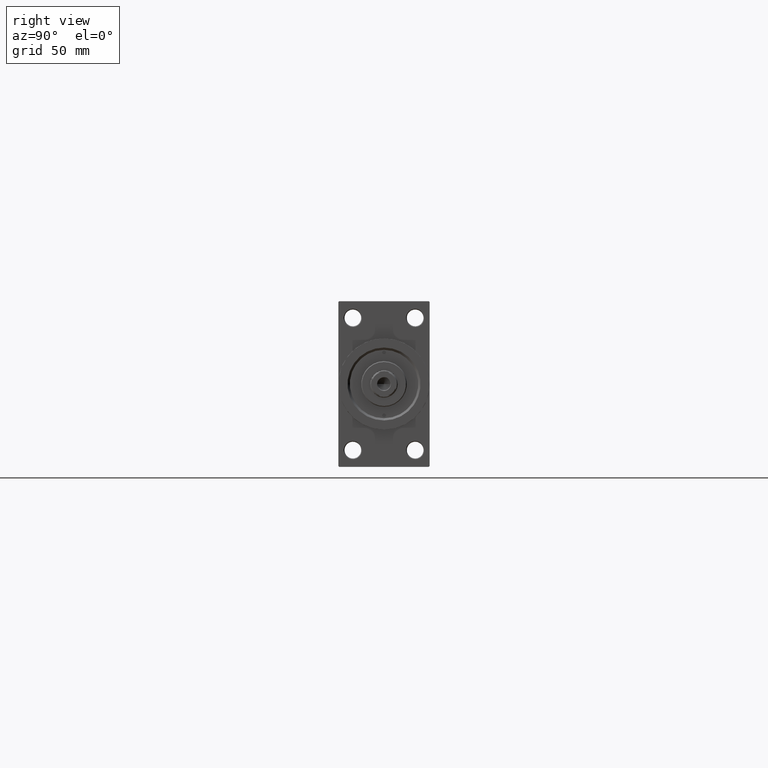
[diagram: clean part render]
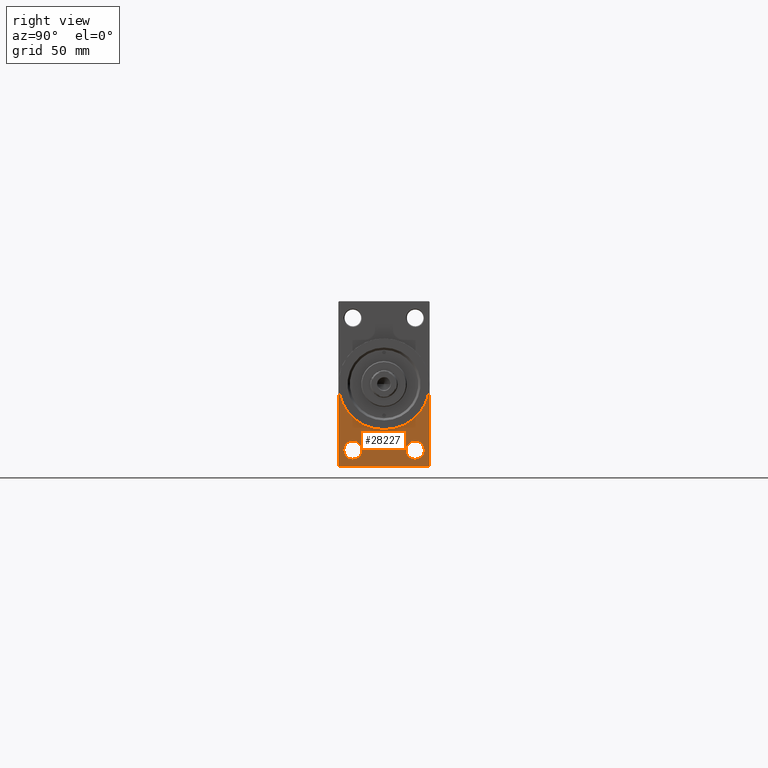
[diagram: same view with one face highlighted and labeled with its STEP entity id]
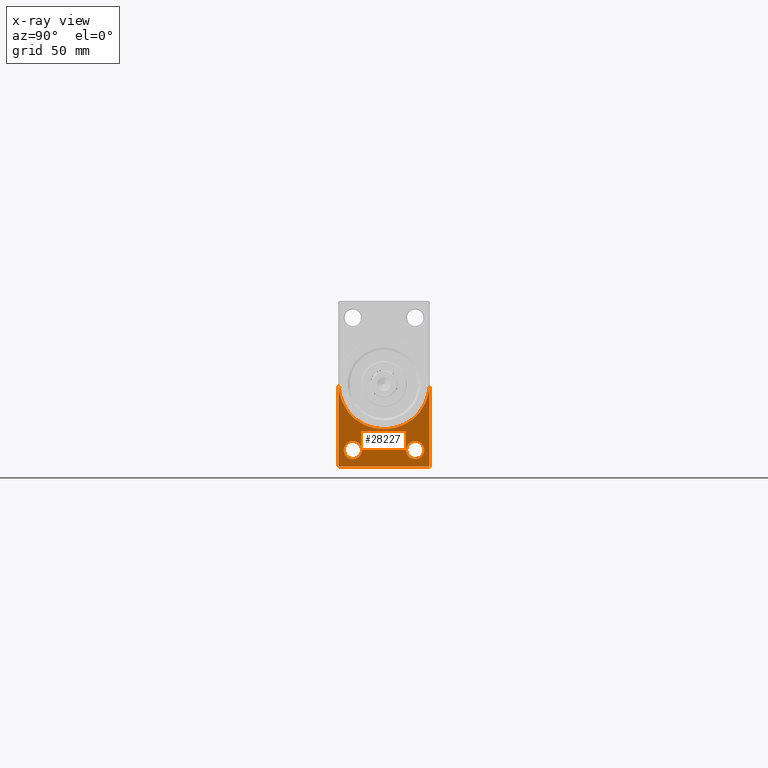
[diagram: x-ray of the same camera — body ghosted, the highlighted face saturated]
A machine part, right view. The second image highlights one B-rep face of the part: STEP entity #28227.
The next image is the same camera in x-ray: the body ghosted, the highlighted face saturated — about 0% of this face is hidden behind the body in this view.
In plain terms, the highlighted planar face has unit normal (-1, 0, 0).
Its self-contained STEP definition (entity closure, byte-faithful):
#1434 = CIRCLE ( 'NONE', #29779, 30.00000000000000000 ) ;
#1497 = VERTEX_POINT ( 'NONE', #36534 ) ;
#1660 = LINE ( 'NONE', #27813, #47189 ) ;
#1730 = CARTESIAN_POINT ( 'NONE',  ( 418.0000000000000000, -20.50000000000000000, -49.49999999999995026 ) ) ;
#1760 = PLANE ( 'NONE',  #44099 ) ;
#1898 = DIRECTION ( 'NONE',  ( 0.000000000000000000, 0.7071067811865352493, -0.7071067811865597852 ) ) ;
#1968 = VERTEX_POINT ( 'NONE', #27985 ) ;
#2643 = LINE ( 'NONE', #21101, #42550 ) ;
#3330 = VERTEX_POINT ( 'NONE', #1730 ) ;
#3843 = CARTESIAN_POINT ( 'NONE',  ( 418.0000000000000000, -29.49999999999994671, -54.50000000000000000 ) ) ;
#4237 = AXIS2_PLACEMENT_3D ( 'NONE', #38419, #27400, #31465 ) ;
#4543 = ORIENTED_EDGE ( 'NONE', *, *, #18996, .T. ) ;
#4949 = EDGE_CURVE ( 'NONE', #1497, #1968, #37980, .T. ) ;
#6084 = DIRECTION ( 'NONE',  ( 0.000000000000000000, 0.000000000000000000, 1.000000000000000000 ) ) ;
#6450 = EDGE_CURVE ( 'NONE', #21671, #11611, #2643, .T. ) ;
#6783 = ORIENTED_EDGE ( 'NONE', *, *, #6450, .F. ) ;
#6958 = ORIENTED_EDGE ( 'NONE', *, *, #36965, .T. ) ;
#7778 = DIRECTION ( 'NONE',  ( 0.000000000000000000, -1.000000000000000000, -1.156482317317871478E-16 ) ) ;
#8243 = CARTESIAN_POINT ( 'NONE',  ( 418.0000000000000000, -20.50000000000000000, -43.50000000000000000 ) ) ;
#8944 = DIRECTION ( 'NONE',  ( -1.000000000000000000, 0.000000000000000000, -0.000000000000000000 ) ) ;
#9300 = EDGE_LOOP ( 'NONE', ( #12658, #30527 ) ) ;
#9624 = CARTESIAN_POINT ( 'NONE',  ( 418.0000000000000000, 0.000000000000000000, 0.000000000000000000 ) ) ;
#9720 = CARTESIAN_POINT ( 'NONE',  ( 418.0000000000000000, 3.673940397442059178E-15, -30.00000000000000000 ) ) ;
#9875 = CARTESIAN_POINT ( 'NONE',  ( 418.0000000000000000, -30.00000000000000000, -53.99999999999992895 ) ) ;
#10454 = AXIS2_PLACEMENT_3D ( 'NONE', #45637, #8944, #6084 ) ;
#10753 = DIRECTION ( 'NONE',  ( 0.000000000000000000, 0.000000000000000000, -1.000000000000000000 ) ) ;
#11172 = CIRCLE ( 'NONE', #33370, 5.999999999999950262 ) ;
#11401 = DIRECTION ( 'NONE',  ( 0.000000000000000000, 0.000000000000000000, 1.000000000000000000 ) ) ;
#11611 = VERTEX_POINT ( 'NONE', #28762 ) ;
#11628 = CARTESIAN_POINT ( 'NONE',  ( 418.0000000000000000, -20.50000000000000000, -43.50000000000000000 ) ) ;
#12658 = ORIENTED_EDGE ( 'NONE', *, *, #26841, .T. ) ;
#14229 = VERTEX_POINT ( 'NONE', #35661 ) ;
#14414 = VERTEX_POINT ( 'NONE', #18843 ) ;
#15016 = ORIENTED_EDGE ( 'NONE', *, *, #19203, .F. ) ;
#15235 = EDGE_CURVE ( 'NONE', #41510, #38305, #1434, .T. ) ;
#15438 = DIRECTION ( 'NONE',  ( 0.000000000000000000, 0.000000000000000000, 1.000000000000000000 ) ) ;
#15717 = ORIENTED_EDGE ( 'NONE', *, *, #28056, .T. ) ;
#15940 = FACE_OUTER_BOUND ( 'NONE', #19123, .T. ) ;
#16409 = DIRECTION ( 'NONE',  ( -0.000000000000000000, 0.000000000000000000, 1.000000000000000000 ) ) ;
#18843 = CARTESIAN_POINT ( 'NONE',  ( 418.0000000000000000, 29.49999999999993960, -54.49999999999999289 ) ) ;
#18996 = EDGE_CURVE ( 'NONE', #3330, #14229, #41523, .T. ) ;
#19092 = CARTESIAN_POINT ( 'NONE',  ( 418.0000000000000000, -30.00000000000000000, 0.000000000000000000 ) ) ;
#19123 = EDGE_LOOP ( 'NONE', ( #46350, #37797, #19715, #6958, #6783, #15016, #34105 ) ) ;
#19203 = EDGE_CURVE ( 'NONE', #38305, #21671, #34645, .T. ) ;
#19715 = ORIENTED_EDGE ( 'NONE', *, *, #22782, .F. ) ;
#19995 = FACE_BOUND ( 'NONE', #20509, .T. ) ;
#20212 = VERTEX_POINT ( 'NONE', #3843 ) ;
#20509 = EDGE_LOOP ( 'NONE', ( #4543, #15717 ) ) ;
#20763 = CARTESIAN_POINT ( 'NONE',  ( 418.0000000000000000, 0.000000000000000000, 0.000000000000000000 ) ) ;
#21101 = CARTESIAN_POINT ( 'NONE',  ( 418.0000000000000000, 29.99999999999999645, 54.49999999999999289 ) ) ;
#21671 = VERTEX_POINT ( 'NONE', #32991 ) ;
#21680 = CARTESIAN_POINT ( 'NONE',  ( 418.0000000000000000, 29.99999999999999645, -54.49999999999999289 ) ) ;
#22782 = EDGE_CURVE ( 'NONE', #14414, #20212, #43986, .T. ) ;
#23910 = AXIS2_PLACEMENT_3D ( 'NONE', #8243, #37948, #15438 ) ;
#26841 = EDGE_CURVE ( 'NONE', #1968, #1497, #47151, .T. ) ;
#27179 = EDGE_CURVE ( 'NONE', #42377, #20212, #1660, .T. ) ;
#27400 = DIRECTION ( 'NONE',  ( -1.000000000000000000, 0.000000000000000000, -0.000000000000000000 ) ) ;
#27503 = LINE ( 'NONE', #30837, #28189 ) ;
#27783 = EDGE_CURVE ( 'NONE', #41510, #42377, #43135, .T. ) ;
#27813 = CARTESIAN_POINT ( 'NONE',  ( 418.0000000000000000, -29.49999999999994671, -54.50000000000000000 ) ) ;
#27913 = CARTESIAN_POINT ( 'NONE',  ( 418.0000000000000000, 0.000000000000000000, 0.000000000000000000 ) ) ;
#27985 = CARTESIAN_POINT ( 'NONE',  ( 418.0000000000000000, 20.50000000000000000, -49.49999999999995026 ) ) ;
#28056 = EDGE_CURVE ( 'NONE', #14229, #3330, #11172, .T. ) ;
#28189 = VECTOR ( 'NONE', #45248, 1000.000000000000114 ) ;
#28227 = ADVANCED_FACE ( 'NONE', ( #19995, #38462, #15940 ), #1760, .F. ) ;
#28762 = CARTESIAN_POINT ( 'NONE',  ( 418.0000000000000000, 29.99999999999999645, -53.99999999999993605 ) ) ;
#29779 = AXIS2_PLACEMENT_3D ( 'NONE', #20763, #31772, #32485 ) ;
#30527 = ORIENTED_EDGE ( 'NONE', *, *, #4949, .T. ) ;
#30837 = CARTESIAN_POINT ( 'NONE',  ( 418.0000000000000000, 29.99999999999999645, -53.99999999999993605 ) ) ;
#31465 = DIRECTION ( 'NONE',  ( 0.000000000000000000, 0.000000000000000000, 1.000000000000000000 ) ) ;
#31772 = DIRECTION ( 'NONE',  ( 1.000000000000000000, 0.000000000000000000, 0.000000000000000000 ) ) ;
#32485 = DIRECTION ( 'NONE',  ( 0.000000000000000000, 0.000000000000000000, -1.000000000000000000 ) ) ;
#32991 = CARTESIAN_POINT ( 'NONE',  ( 418.0000000000000000, 30.00000000000000000, 0.000000000000000000 ) ) ;
#33370 = AXIS2_PLACEMENT_3D ( 'NONE', #11628, #37521, #11401 ) ;
#34105 = ORIENTED_EDGE ( 'NONE', *, *, #15235, .F. ) ;
#34645 = CIRCLE ( 'NONE', #40734, 30.00000000000000000 ) ;
#34863 = DIRECTION ( 'NONE',  ( -1.000000000000000000, 0.000000000000000000, -0.000000000000000000 ) ) ;
#35661 = CARTESIAN_POINT ( 'NONE',  ( 418.0000000000000000, -20.50000000000000000, -37.50000000000004974 ) ) ;
#35740 = DIRECTION ( 'NONE',  ( 0.000000000000000000, 0.000000000000000000, -1.000000000000000000 ) ) ;
#35985 = DIRECTION ( 'NONE',  ( 1.000000000000000000, 0.000000000000000000, 0.000000000000000000 ) ) ;
#36423 = VECTOR ( 'NONE', #10753, 1000.000000000000000 ) ;
#36534 = CARTESIAN_POINT ( 'NONE',  ( 418.0000000000000000, 20.50000000000000000, -37.50000000000004974 ) ) ;
#36965 = EDGE_CURVE ( 'NONE', #14414, #11611, #27503, .T. ) ;
#37521 = DIRECTION ( 'NONE',  ( -1.000000000000000000, 0.000000000000000000, -0.000000000000000000 ) ) ;
#37797 = ORIENTED_EDGE ( 'NONE', *, *, #27179, .T. ) ;
#37948 = DIRECTION ( 'NONE',  ( -1.000000000000000000, 0.000000000000000000, -0.000000000000000000 ) ) ;
#37980 = CIRCLE ( 'NONE', #10454, 5.999999999999950262 ) ;
#38305 = VERTEX_POINT ( 'NONE', #9720 ) ;
#38419 = CARTESIAN_POINT ( 'NONE',  ( 418.0000000000000000, 20.50000000000000000, -43.50000000000000000 ) ) ;
#38462 = FACE_BOUND ( 'NONE', #9300, .T. ) ;
#40231 = CARTESIAN_POINT ( 'NONE',  ( 418.0000000000000000, -30.00000000000000000, 54.50000000000000000 ) ) ;
#40734 = AXIS2_PLACEMENT_3D ( 'NONE', #9624, #35985, #46314 ) ;
#41510 = VERTEX_POINT ( 'NONE', #19092 ) ;
#41523 = CIRCLE ( 'NONE', #23910, 5.999999999999950262 ) ;
#42377 = VERTEX_POINT ( 'NONE', #9875 ) ;
#42397 = VECTOR ( 'NONE', #7778, 1000.000000000000000 ) ;
#42550 = VECTOR ( 'NONE', #35740, 1000.000000000000000 ) ;
#43135 = LINE ( 'NONE', #40231, #36423 ) ;
#43986 = LINE ( 'NONE', #21680, #42397 ) ;
#44099 = AXIS2_PLACEMENT_3D ( 'NONE', #27913, #34863, #16409 ) ;
#45248 = DIRECTION ( 'NONE',  ( -0.000000000000000000, 0.7071067811865474617, 0.7071067811865474617 ) ) ;
#45637 = CARTESIAN_POINT ( 'NONE',  ( 418.0000000000000000, 20.50000000000000000, -43.50000000000000000 ) ) ;
#46314 = DIRECTION ( 'NONE',  ( 0.000000000000000000, 0.000000000000000000, -1.000000000000000000 ) ) ;
#46350 = ORIENTED_EDGE ( 'NONE', *, *, #27783, .T. ) ;
#47151 = CIRCLE ( 'NONE', #4237, 5.999999999999950262 ) ;
#47189 = VECTOR ( 'NONE', #1898, 1000.000000000000000 ) ;